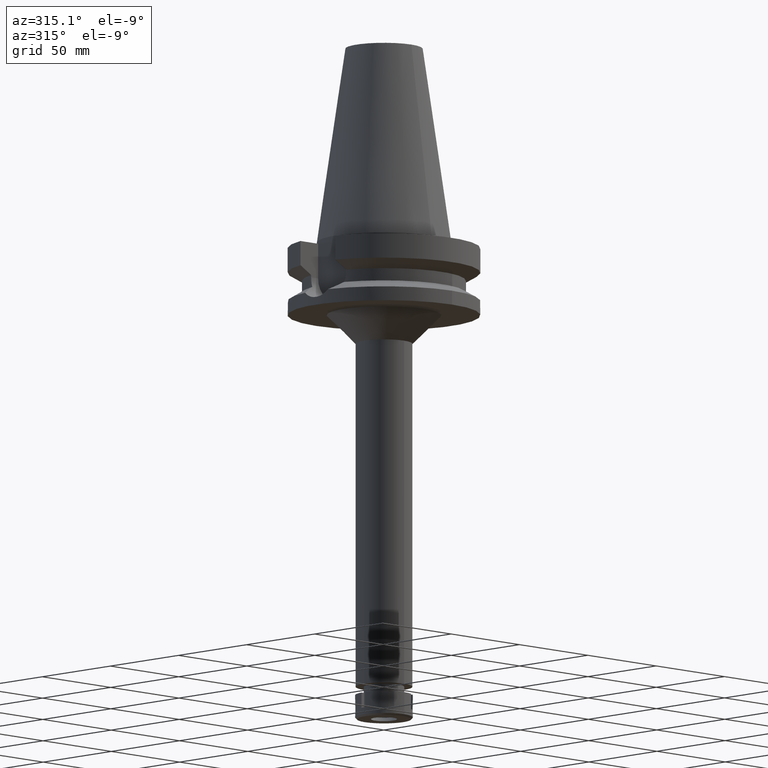
[diagram: clean part render]
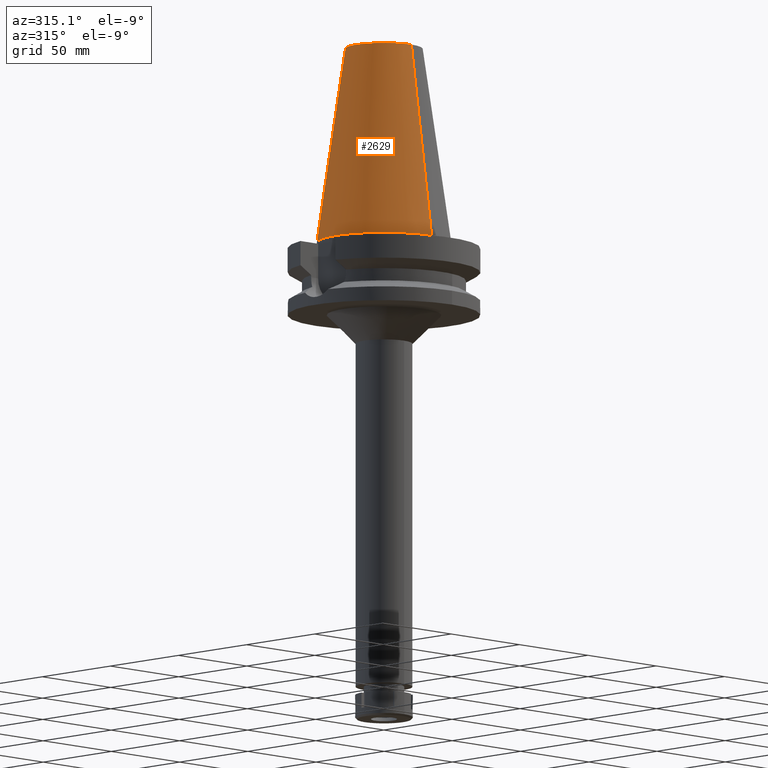
[diagram: same view with one face highlighted and labeled with its STEP entity id]
A machine part, auxiliary view. The second image highlights one B-rep face of the part: STEP entity #2629.
In plain terms, the highlighted conical surface has half-angle 8.297 deg.
Its self-contained STEP definition (entity closure, byte-faithful):
#157 = CONICAL_SURFACE ( 'NONE', #663, 27.50221485948000222, 0.1448099680379422438 ) ;
#210 = CIRCLE ( 'NONE', #1761, 20.07942971896000017 ) ;
#496 = FACE_OUTER_BOUND ( 'NONE', #2707, .T. ) ;
#663 = AXIS2_PLACEMENT_3D ( 'NONE', #1605, #2719, #1318 ) ;
#683 = VERTEX_POINT ( 'NONE', #1848 ) ;
#708 = ORIENTED_EDGE ( 'NONE', *, *, #1401, .T. ) ;
#731 = EDGE_CURVE ( 'NONE', #3139, #3270, #1834, .T. ) ;
#919 = DIRECTION ( 'NONE',  ( 0.0000000000000000000, 0.1443043893538948075, -0.9895333461855641000 ) ) ;
#1013 = ORIENTED_EDGE ( 'NONE', *, *, #731, .F. ) ;
#1035 = CARTESIAN_POINT ( 'NONE',  ( 0.0000000000000000000, 1.847992019912999597E-14, 3.979039320256999774E-13 ) ) ;
#1042 = CARTESIAN_POINT ( 'NONE',  ( 0.0000000000000000000, -20.07942971896000017, 101.7999999999999972 ) ) ;
#1058 = CARTESIAN_POINT ( 'NONE',  ( 0.0000000000000000000, 1.847992019912999597E-14, 101.7999999999999972 ) ) ;
#1234 = AXIS2_PLACEMENT_3D ( 'NONE', #1035, #1258, #1793 ) ;
#1258 = DIRECTION ( 'NONE',  ( 0.0000000000000000000, 0.0000000000000000000, -1.000000000000000000 ) ) ;
#1318 = DIRECTION ( 'NONE',  ( 0.0000000000000000000, -1.000000000000000000, 0.0000000000000000000 ) ) ;
#1401 = EDGE_CURVE ( 'NONE', #3139, #683, #210, .T. ) ;
#1605 = CARTESIAN_POINT ( 'NONE',  ( 0.0000000000000000000, 1.847992019912999597E-14, 50.89999999999999858 ) ) ;
#1654 = DIRECTION ( 'NONE',  ( 0.0000000000000000000, 0.0000000000000000000, -1.000000000000000000 ) ) ;
#1709 = CARTESIAN_POINT ( 'NONE',  ( 0.0000000000000000000, 20.07942971896000017, 101.7999999999999972 ) ) ;
#1761 = AXIS2_PLACEMENT_3D ( 'NONE', #1058, #1654, #3024 ) ;
#1793 = DIRECTION ( 'NONE',  ( 0.0000000000000000000, -1.000000000000000000, 0.0000000000000000000 ) ) ;
#1834 = LINE ( 'NONE', #1042, #2572 ) ;
#1848 = CARTESIAN_POINT ( 'NONE',  ( 0.0000000000000000000, 20.07942971896000017, 101.7999999999999972 ) ) ;
#2028 = VECTOR ( 'NONE', #919, 1000.000000000000114 ) ;
#2113 = DIRECTION ( 'NONE',  ( 0.0000000000000000000, -0.1443043893538948075, -0.9895333461855641000 ) ) ;
#2175 = VERTEX_POINT ( 'NONE', #2885 ) ;
#2222 = EDGE_CURVE ( 'NONE', #3270, #2175, #2877, .T. ) ;
#2572 = VECTOR ( 'NONE', #2113, 1000.000000000000114 ) ;
#2629 = ADVANCED_FACE ( 'NONE', ( #496 ), #157, .T. ) ;
#2659 = CARTESIAN_POINT ( 'NONE',  ( 0.0000000000000000000, -20.07942971896000017, 101.7999999999999972 ) ) ;
#2707 = EDGE_LOOP ( 'NONE', ( #3348, #1013, #708, #3283 ) ) ;
#2719 = DIRECTION ( 'NONE',  ( 0.0000000000000000000, 0.0000000000000000000, -1.000000000000000000 ) ) ;
#2750 = CARTESIAN_POINT ( 'NONE',  ( 0.0000000000000000000, -34.92499999999999716, 3.979039320256999774E-13 ) ) ;
#2877 = CIRCLE ( 'NONE', #1234, 34.92499999999999716 ) ;
#2885 = CARTESIAN_POINT ( 'NONE',  ( 0.0000000000000000000, 34.92499999999999716, 5.115907697473000027E-13 ) ) ;
#3024 = DIRECTION ( 'NONE',  ( 0.0000000000000000000, -1.000000000000000000, 0.0000000000000000000 ) ) ;
#3117 = LINE ( 'NONE', #1709, #2028 ) ;
#3139 = VERTEX_POINT ( 'NONE', #2659 ) ;
#3270 = VERTEX_POINT ( 'NONE', #2750 ) ;
#3283 = ORIENTED_EDGE ( 'NONE', *, *, #3434, .T. ) ;
#3348 = ORIENTED_EDGE ( 'NONE', *, *, #2222, .F. ) ;
#3434 = EDGE_CURVE ( 'NONE', #683, #2175, #3117, .T. ) ;